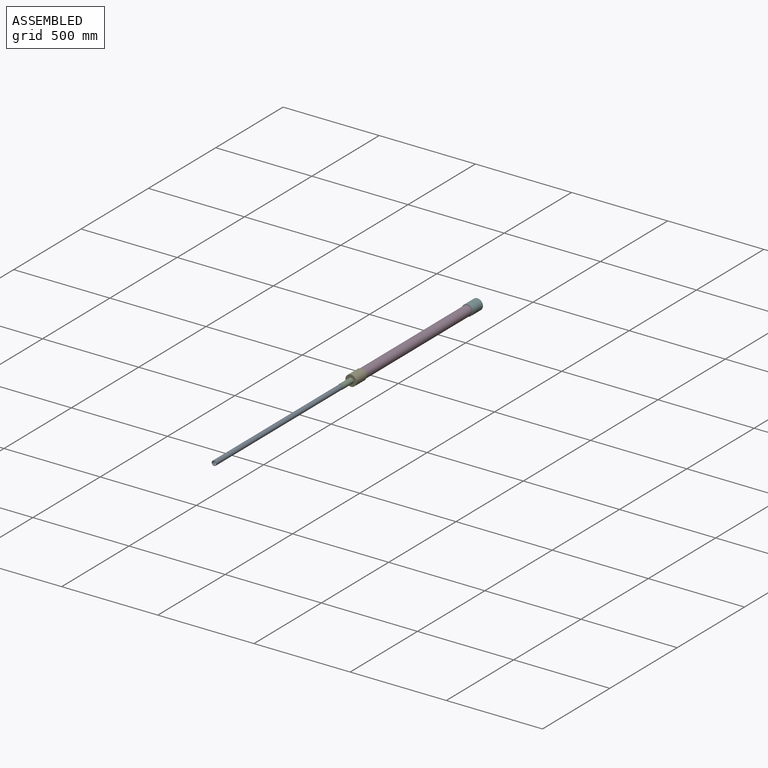
[diagram: assembled view]
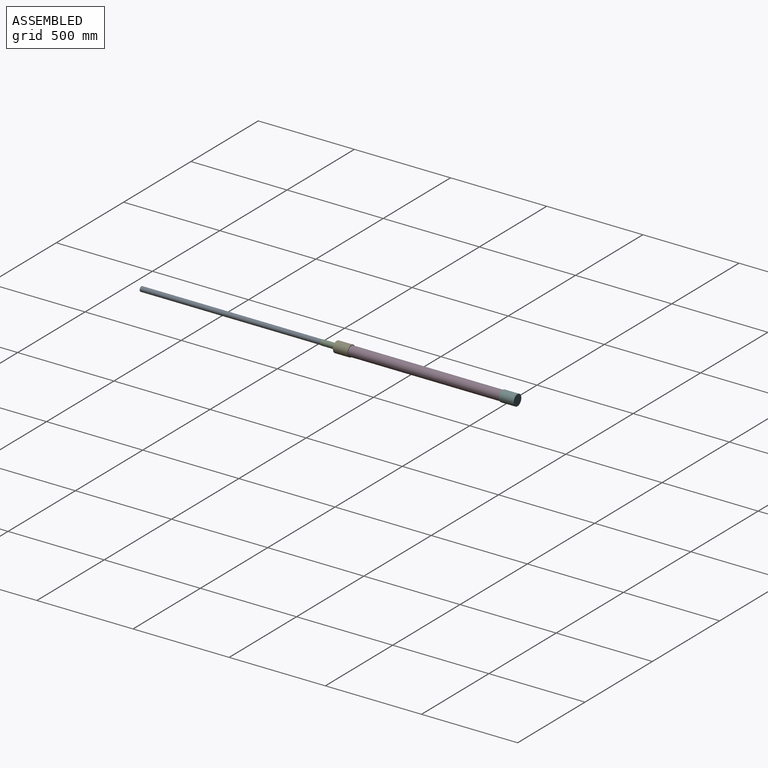
[diagram: assembled view, second angle]
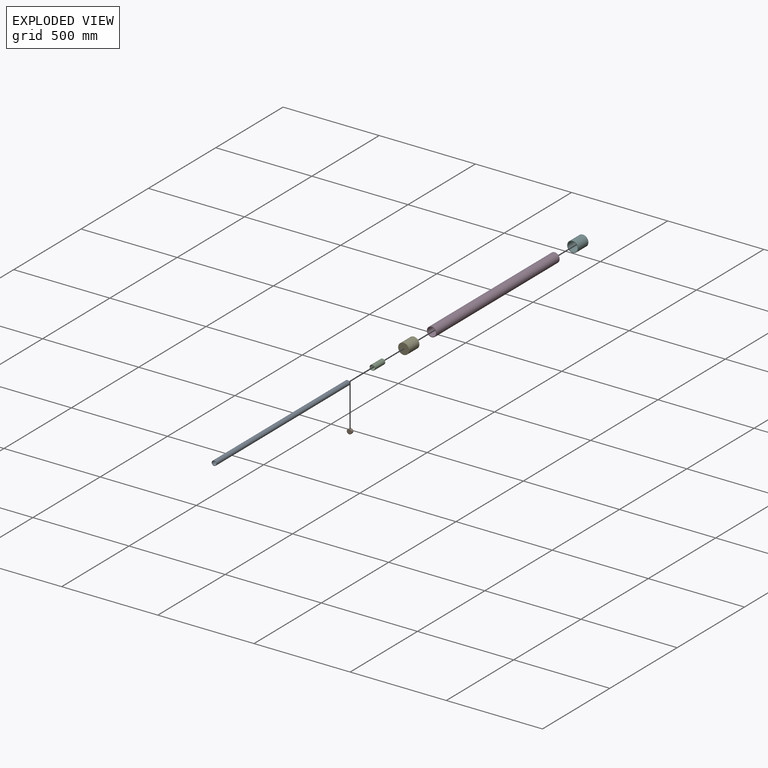
[diagram: exploded view]
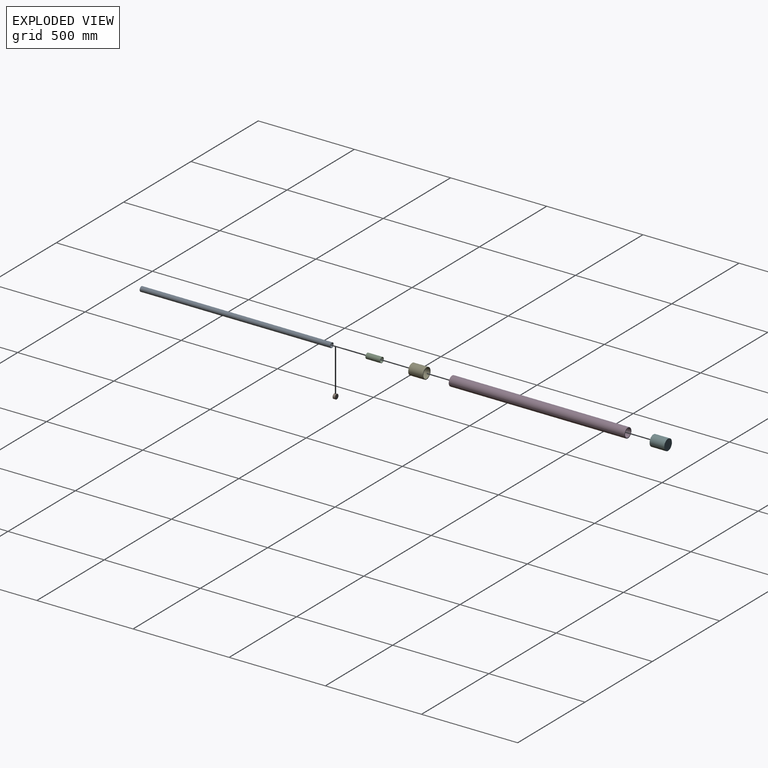
[diagram: exploded view, second angle]
ASSEMBLY  parts=6 mates=5
PART A: 4 faces, bbox 25.4x990.6x25.4 mm
  f0: cylinder r=12.7mm len=990.6mm, axis (0,1,0), area 79046.4mm2, adj f1,f2
  f1: plane 25.4x25.4mm, normal (0,-1,0), area 130.4mm2, adj f0,f3
  f2: plane 25.4x25.4mm, normal (0,1,0), area 130.4mm2, adj f0,f3
  f3: cylinder r=10.94mm len=990.6mm, axis (0,-1,0), area 68122.7mm2, adj f1,f2
PART B: 3 faces, bbox 25.4x25.4x12.7 mm
  f0: cylinder r=12.7mm len=25.4mm, axis (0,0,-1), area 1013.4mm2, adj f1,f2
  f1: plane 25.4x25.4mm, normal (0,0,1), area 506.7mm2, adj f0
  f2: plane 25.4x25.4mm, normal (0,0,-1), area 506.7mm2, adj f0
PART C: 4 faces, bbox 27.9x27.9x76.2 mm
  f0: cylinder r=12.7mm len=76.2mm, axis (0,0,-1), area 6080.5mm2, adj f2,f3
  f1: cylinder r=13.97mm len=76.2mm, axis (0,0,-1), area 6688.5mm2, adj f2,f3
  f2: plane 27.94x27.94mm, normal (0,0,1), area 106.4mm2, adj f0,f1
  f3: plane 27.94x27.94mm, normal (0,0,-1), area 106.4mm2, adj f0,f1
PART D: 4 faces, bbox 50.8x914.4x50.8 mm
  f0: cylinder r=25.4mm len=914.4mm, axis (0,1,0), area 145931.8mm2, adj f1,f2
  f1: plane 50.8x50.8mm, normal (0,-1,0), area 527.3mm2, adj f0,f3
  f2: plane 50.8x50.8mm, normal (0,1,0), area 527.3mm2, adj f0,f3
  f3: cylinder r=21.85mm len=914.4mm, axis (0,-1,0), area 125522.6mm2, adj f1,f2
PART E: 5 faces, bbox 57.2x76.2x57.2 mm
  f0: cylinder r=25.4mm len=63.5mm, axis (0,1,0), area 10134.1mm2, adj f2,f4
  f1: cylinder r=28.57mm len=76.2mm, axis (0,1,0), area 13681.1mm2, adj f2,f3
  f2: plane 57.15x57.15mm, normal (0,-1,0), area 538.4mm2, adj f0,f1
  f3: plane 57.15x57.15mm, normal (0,1,0), area 2565.2mm2, adj f1
  f4: plane 50.8x50.8mm, normal (0,-1,0), area 2026.8mm2, adj f0
PART F: same geometry as E
PLACE A rot(axis=(0,0,1),180deg) t=(-30.7,-2095.6,31.86)mm
PLACE B rot(axis=(0.58,0.58,-0.58),120deg) t=(134.83,-1079.6,31.86)mm
PLACE C rot(axis=(0.58,0.58,-0.58),120deg) t=(134.83,-1079.6,31.86)mm
PLACE D t=(36.12,-152.5,31.86)mm
PLACE E rot(axis=(1,0,0),180deg) t=(159.3,-1079.6,31.86)mm
PLACE F t=(159.3,-139.8,31.86)mm
MATE fastened F.f1 <-> D.f3  axis (0,-1,0) through (159.3,-152.5,31.86)mm
MATE fastened B.f0 <-> E.f1  axis (0,1,0) through (159.3,-1079.6,31.86)mm
MATE fastened C.f0 <-> A.f0  axis (0,-1,0) through (159.3,-1155.8,31.86)mm
MATE fastened B.f0 <-> C.f0  axis (0,1,0) through (159.3,-1079.6,31.86)mm
MATE fastened E.f0 <-> D.f3  axis (0,1,0) through (159.3,-1066.9,31.86)mm
